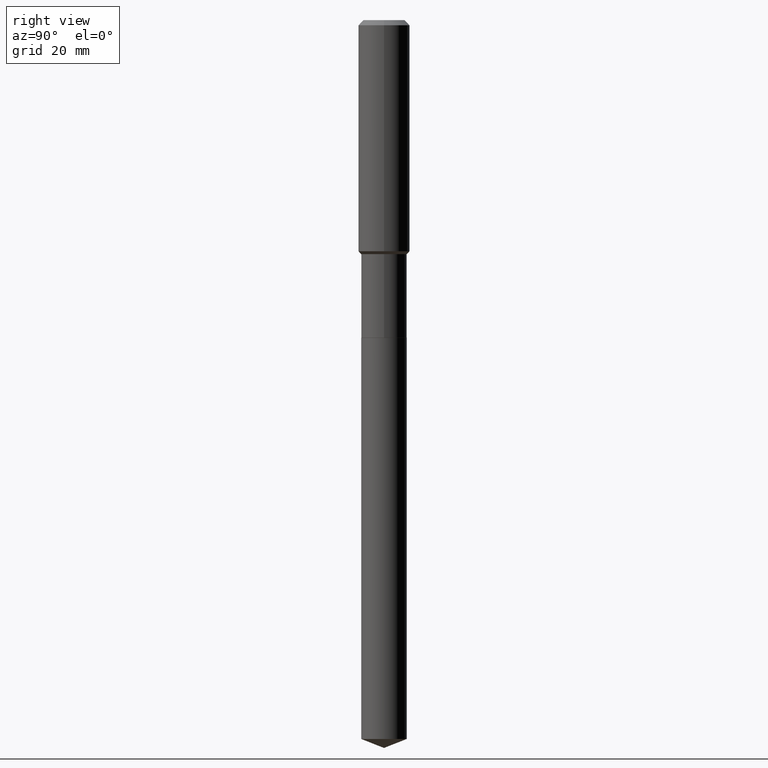
[diagram: clean part render]
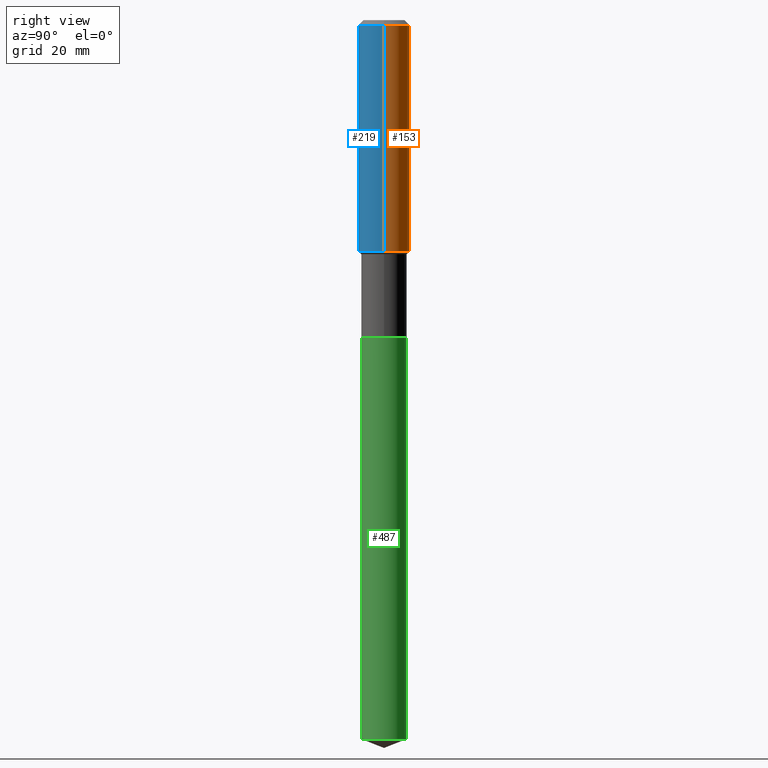
[diagram: same view with three faces highlighted in distinct colors, each labeled with its STEP entity id]
A machine part, right view with three faces highlighted in distinct colors.
Their STEP definitions:

[orange] entity #153 — the highlighted cylindrical surface (edge-blend (fillet) strip) has radius 5 mm, axis along (-0, 0, 1).
#35 = CYLINDRICAL_SURFACE ( 'NONE', #428, 0.1968500000000001082 ) ;
#41 = AXIS2_PLACEMENT_3D ( 'NONE', #408, #106, #74 ) ;
#43 = DIRECTION ( 'NONE',  ( -2.445468806185136877E-29, 3.491481338843145188E-15, 1.000000000000000000 ) ) ;
#52 = CARTESIAN_POINT ( 'NONE',  ( 0.1968500000000002192, -7.575641634954907798E-15, -1.776049999999999018 ) ) ;
#70 = CARTESIAN_POINT ( 'NONE',  ( 0.1968500000000001082, -1.374596203102542397E-15, 9.598753983154305062E-30 ) ) ;
#74 = DIRECTION ( 'NONE',  ( 1.000000000000000000, -6.982962677686265922E-15, 0.000000000000000000 ) ) ;
#83 = VERTEX_POINT ( 'NONE', #52 ) ;
#105 = DIRECTION ( 'NONE',  ( 1.000000000000000000, -6.982962677686265922E-15, 0.000000000000000000 ) ) ;
#106 = DIRECTION ( 'NONE',  ( -2.445468806185136597E-29, 3.491481338843145583E-15, 1.000000000000000000 ) ) ;
#113 = LINE ( 'NONE', #377, #294 ) ;
#137 = CARTESIAN_POINT ( 'NONE',  ( 0.000000000000000000, 0.000000000000000000, 0.000000000000000000 ) ) ;
#144 = EDGE_CURVE ( 'NONE', #83, #434, #222, .T. ) ;
#148 = CARTESIAN_POINT ( 'NONE',  ( -0.1968500000000000250, -1.770549150737551717E-15, -0.03937000000000024508 ) ) ;
#153 = ADVANCED_FACE ( 'NONE', ( #220 ), #35, .T. ) ;
#159 = VERTEX_POINT ( 'NONE', #178 ) ;
#168 = ORIENTED_EDGE ( 'NONE', *, *, #144, .F. ) ;
#178 = CARTESIAN_POINT ( 'NONE',  ( -0.1968500000000002192, -4.802342056508606825E-15, -1.776049999999999018 ) ) ;
#185 = EDGE_LOOP ( 'NONE', ( #269, #189, #413, #168 ) ) ;
#189 = ORIENTED_EDGE ( 'NONE', *, *, #475, .T. ) ;
#195 = VECTOR ( 'NONE', #447, 39.37007874015748143 ) ;
#215 = DIRECTION ( 'NONE',  ( 1.000000000000000000, -6.982962677686266711E-15, 4.876176775795935793E-29 ) ) ;
#220 = FACE_OUTER_BOUND ( 'NONE', #185, .T. ) ;
#222 = LINE ( 'NONE', #70, #195 ) ;
#227 = CARTESIAN_POINT ( 'NONE',  ( 0.1968500000000000250, -1.512055823412797189E-15, -0.03937000000000024508 ) ) ;
#265 = EDGE_CURVE ( 'NONE', #83, #159, #466, .T. ) ;
#269 = ORIENTED_EDGE ( 'NONE', *, *, #265, .T. ) ;
#286 = EDGE_CURVE ( 'NONE', #434, #361, #366, .T. ) ;
#294 = VECTOR ( 'NONE', #43, 39.37007874015748143 ) ;
#300 = CARTESIAN_POINT ( 'NONE',  ( 9.627810689950943645E-31, -1.374596203102555315E-16, -0.03937000000000024508 ) ) ;
#361 = VERTEX_POINT ( 'NONE', #148 ) ;
#366 = CIRCLE ( 'NONE', #441, 0.1968500000000000250 ) ;
#377 = CARTESIAN_POINT ( 'NONE',  ( -0.1968500000000001082, 1.398703375343757985E-15, -9.682923725166787881E-30 ) ) ;
#408 = CARTESIAN_POINT ( 'NONE',  ( 4.343274873225108979E-29, -6.201045431852364612E-15, -1.776049999999999018 ) ) ;
#412 = DIRECTION ( 'NONE',  ( -2.445468806185136597E-29, 3.491481338843145583E-15, 1.000000000000000000 ) ) ;
#413 = ORIENTED_EDGE ( 'NONE', *, *, #286, .F. ) ;
#428 = AXIS2_PLACEMENT_3D ( 'NONE', #137, #412, #215 ) ;
#434 = VERTEX_POINT ( 'NONE', #227 ) ;
#441 = AXIS2_PLACEMENT_3D ( 'NONE', #300, #443, #105 ) ;
#443 = DIRECTION ( 'NONE',  ( -2.445468806185136597E-29, 3.491481338843145583E-15, 1.000000000000000000 ) ) ;
#447 = DIRECTION ( 'NONE',  ( -2.445468806185136877E-29, 3.491481338843145188E-15, 1.000000000000000000 ) ) ;
#466 = CIRCLE ( 'NONE', #41, 0.1968500000000002192 ) ;
#475 = EDGE_CURVE ( 'NONE', #159, #361, #113, .T. ) ;

[blue] entity #219 — the highlighted cylindrical surface (edge-blend (fillet) strip) has radius 5 mm, axis along (-0, 0, 1).
#24 = DIRECTION ( 'NONE',  ( 1.000000000000000000, -6.982962677686265922E-15, 0.000000000000000000 ) ) ;
#30 = FACE_OUTER_BOUND ( 'NONE', #92, .T. ) ;
#43 = DIRECTION ( 'NONE',  ( -2.445468806185136877E-29, 3.491481338843145188E-15, 1.000000000000000000 ) ) ;
#44 = EDGE_CURVE ( 'NONE', #159, #83, #359, .T. ) ;
#52 = CARTESIAN_POINT ( 'NONE',  ( 0.1968500000000002192, -7.575641634954907798E-15, -1.776049999999999018 ) ) ;
#69 = ORIENTED_EDGE ( 'NONE', *, *, #475, .F. ) ;
#70 = CARTESIAN_POINT ( 'NONE',  ( 0.1968500000000001082, -1.374596203102542397E-15, 9.598753983154305062E-30 ) ) ;
#83 = VERTEX_POINT ( 'NONE', #52 ) ;
#92 = EDGE_LOOP ( 'NONE', ( #69, #301, #202, #417 ) ) ;
#113 = LINE ( 'NONE', #377, #294 ) ;
#144 = EDGE_CURVE ( 'NONE', #83, #434, #222, .T. ) ;
#148 = CARTESIAN_POINT ( 'NONE',  ( -0.1968500000000000250, -1.770549150737551717E-15, -0.03937000000000024508 ) ) ;
#159 = VERTEX_POINT ( 'NONE', #178 ) ;
#176 = CARTESIAN_POINT ( 'NONE',  ( 9.627810689950943645E-31, -1.374596203102555315E-16, -0.03937000000000024508 ) ) ;
#178 = CARTESIAN_POINT ( 'NONE',  ( -0.1968500000000002192, -4.802342056508606825E-15, -1.776049999999999018 ) ) ;
#192 = EDGE_CURVE ( 'NONE', #361, #434, #305, .T. ) ;
#195 = VECTOR ( 'NONE', #447, 39.37007874015748143 ) ;
#202 = ORIENTED_EDGE ( 'NONE', *, *, #144, .T. ) ;
#219 = ADVANCED_FACE ( 'NONE', ( #30 ), #257, .T. ) ;
#222 = LINE ( 'NONE', #70, #195 ) ;
#227 = CARTESIAN_POINT ( 'NONE',  ( 0.1968500000000000250, -1.512055823412797189E-15, -0.03937000000000024508 ) ) ;
#257 = CYLINDRICAL_SURFACE ( 'NONE', #419, 0.1968500000000001082 ) ;
#284 = DIRECTION ( 'NONE',  ( -2.445468806185136597E-29, 3.491481338843145583E-15, 1.000000000000000000 ) ) ;
#294 = VECTOR ( 'NONE', #43, 39.37007874015748143 ) ;
#301 = ORIENTED_EDGE ( 'NONE', *, *, #44, .T. ) ;
#305 = CIRCLE ( 'NONE', #449, 0.1968500000000000250 ) ;
#333 = DIRECTION ( 'NONE',  ( -2.445468806185136597E-29, 3.491481338843145583E-15, 1.000000000000000000 ) ) ;
#359 = CIRCLE ( 'NONE', #489, 0.1968500000000002192 ) ;
#361 = VERTEX_POINT ( 'NONE', #148 ) ;
#377 = CARTESIAN_POINT ( 'NONE',  ( -0.1968500000000001082, 1.398703375343757985E-15, -9.682923725166787881E-30 ) ) ;
#390 = CARTESIAN_POINT ( 'NONE',  ( 4.343274873225108979E-29, -6.201045431852364612E-15, -1.776049999999999018 ) ) ;
#398 = DIRECTION ( 'NONE',  ( 1.000000000000000000, -6.982962677686265922E-15, 0.000000000000000000 ) ) ;
#403 = DIRECTION ( 'NONE',  ( 1.000000000000000000, -6.982962677686266711E-15, 4.876176775795935793E-29 ) ) ;
#417 = ORIENTED_EDGE ( 'NONE', *, *, #192, .F. ) ;
#419 = AXIS2_PLACEMENT_3D ( 'NONE', #484, #333, #403 ) ;
#434 = VERTEX_POINT ( 'NONE', #227 ) ;
#447 = DIRECTION ( 'NONE',  ( -2.445468806185136877E-29, 3.491481338843145188E-15, 1.000000000000000000 ) ) ;
#449 = AXIS2_PLACEMENT_3D ( 'NONE', #176, #476, #398 ) ;
#475 = EDGE_CURVE ( 'NONE', #159, #361, #113, .T. ) ;
#476 = DIRECTION ( 'NONE',  ( -2.445468806185136597E-29, 3.491481338843145583E-15, 1.000000000000000000 ) ) ;
#484 = CARTESIAN_POINT ( 'NONE',  ( 0.000000000000000000, 0.000000000000000000, 0.000000000000000000 ) ) ;
#489 = AXIS2_PLACEMENT_3D ( 'NONE', #390, #284, #24 ) ;

[green] entity #487 — the highlighted cylindrical surface (edge-blend (fillet) strip) has radius 4.4501 mm, axis along (-0, 0, 1).
#1 = CARTESIAN_POINT ( 'NONE',  ( 1.244870873051829791E-15, 0.1751999999999806212, -5.521486884672262896 ) ) ;
#2 = EDGE_CURVE ( 'NONE', #385, #469, #427, .T. ) ;
#3 = VERTEX_POINT ( 'NONE', #216 ) ;
#16 = CIRCLE ( 'NONE', #149, 0.1751999999999999946 ) ;
#18 = EDGE_LOOP ( 'NONE', ( #242, #347, #199, #315 ) ) ;
#42 = DIRECTION ( 'NONE',  ( -2.445428369358333970E-29, 3.491539246680648506E-15, 1.000000000000000000 ) ) ;
#46 = CARTESIAN_POINT ( 'NONE',  ( 1.244870873051754849E-15, 0.1751999999999914459, -2.440899999999999626 ) ) ;
#54 = DIRECTION ( 'NONE',  ( -2.445428369358333970E-29, 3.491539246680648506E-15, 1.000000000000000000 ) ) ;
#68 = LINE ( 'NONE', #109, #78 ) ;
#76 = LINE ( 'NONE', #46, #392 ) ;
#78 = VECTOR ( 'NONE', #330, 39.37007874015748143 ) ;
#80 = DIRECTION ( 'NONE',  ( -6.982962677686265133E-15, -1.000000000000000000, 6.237095875945806629E-15 ) ) ;
#89 = FACE_OUTER_BOUND ( 'NONE', #18, .T. ) ;
#96 = DIRECTION ( 'NONE',  ( -6.982962677686265133E-15, -1.000000000000000000, 3.118547937972903315E-15 ) ) ;
#109 = CARTESIAN_POINT ( 'NONE',  ( -1.223415061130574121E-15, -0.1752000000000085156, -2.440899999999998737 ) ) ;
#111 = DIRECTION ( 'NONE',  ( -2.445428369358333970E-29, 3.491539246680648506E-15, 1.000000000000000000 ) ) ;
#149 = AXIS2_PLACEMENT_3D ( 'NONE', #376, #42, #80 ) ;
#161 = CYLINDRICAL_SURFACE ( 'NONE', #250, 0.1751999999999999946 ) ;
#162 = DIRECTION ( 'NONE',  ( -6.982962677686265133E-15, -1.000000000000000000, 3.118547937972903315E-15 ) ) ;
#199 = ORIENTED_EDGE ( 'NONE', *, *, #2, .F. ) ;
#216 = CARTESIAN_POINT ( 'NONE',  ( -1.223415061130498390E-15, -0.1752000000000192015, -5.521486884672260231 ) ) ;
#230 = CARTESIAN_POINT ( 'NONE',  ( 1.244870873051830580E-15, 0.1751999999999914459, -2.440899999999999626 ) ) ;
#241 = EDGE_CURVE ( 'NONE', #3, #385, #68, .T. ) ;
#242 = ORIENTED_EDGE ( 'NONE', *, *, #471, .T. ) ;
#250 = AXIS2_PLACEMENT_3D ( 'NONE', #358, #54, #162 ) ;
#258 = DIRECTION ( 'NONE',  ( -2.445428369358333970E-29, 3.491539246680648506E-15, 1.000000000000000000 ) ) ;
#296 = CARTESIAN_POINT ( 'NONE',  ( 5.969144809017297917E-29, -8.522356799982231388E-15, -2.440899999999999181 ) ) ;
#315 = ORIENTED_EDGE ( 'NONE', *, *, #241, .F. ) ;
#321 = VERTEX_POINT ( 'NONE', #1 ) ;
#330 = DIRECTION ( 'NONE',  ( -2.445428369358333970E-29, 3.491539246680648506E-15, 1.000000000000000000 ) ) ;
#343 = CARTESIAN_POINT ( 'NONE',  ( -1.223415061130574121E-15, -0.1752000000000085156, -2.440899999999998737 ) ) ;
#347 = ORIENTED_EDGE ( 'NONE', *, *, #415, .T. ) ;
#358 = CARTESIAN_POINT ( 'NONE',  ( 5.969144809017297917E-29, -8.522356799982231388E-15, -2.440899999999999181 ) ) ;
#376 = CARTESIAN_POINT ( 'NONE',  ( 1.350249937106805786E-28, -1.927834681062510951E-14, -5.521486884672262008 ) ) ;
#385 = VERTEX_POINT ( 'NONE', #343 ) ;
#392 = VECTOR ( 'NONE', #111, 39.37007874015748143 ) ;
#415 = EDGE_CURVE ( 'NONE', #321, #469, #76, .T. ) ;
#427 = CIRCLE ( 'NONE', #481, 0.1751999999999999946 ) ;
#469 = VERTEX_POINT ( 'NONE', #230 ) ;
#471 = EDGE_CURVE ( 'NONE', #3, #321, #16, .T. ) ;
#481 = AXIS2_PLACEMENT_3D ( 'NONE', #296, #258, #96 ) ;
#487 = ADVANCED_FACE ( 'NONE', ( #89 ), #161, .T. ) ;